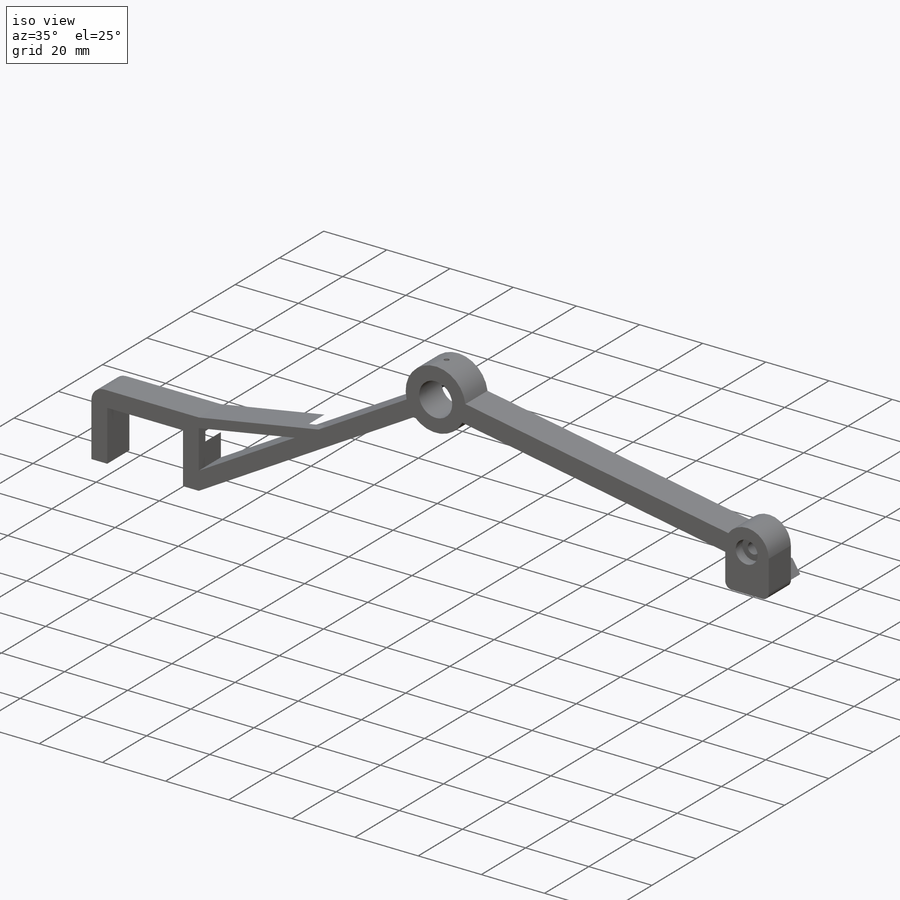
[diagram: iso view]
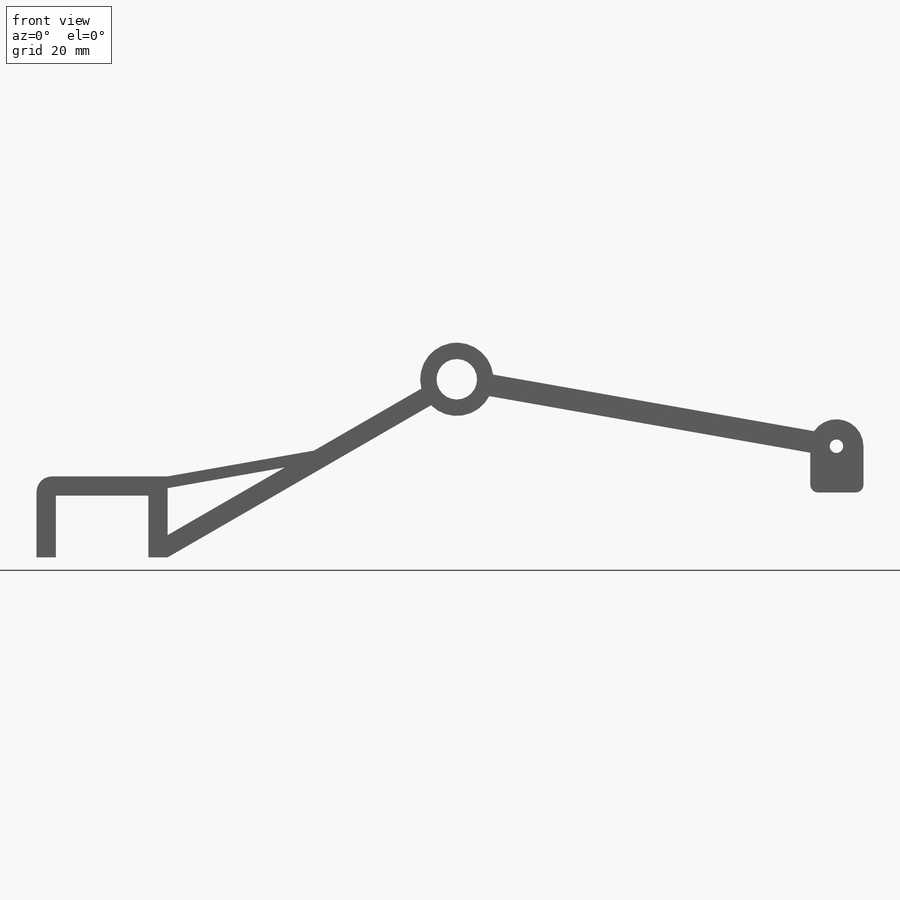
[diagram: front view]
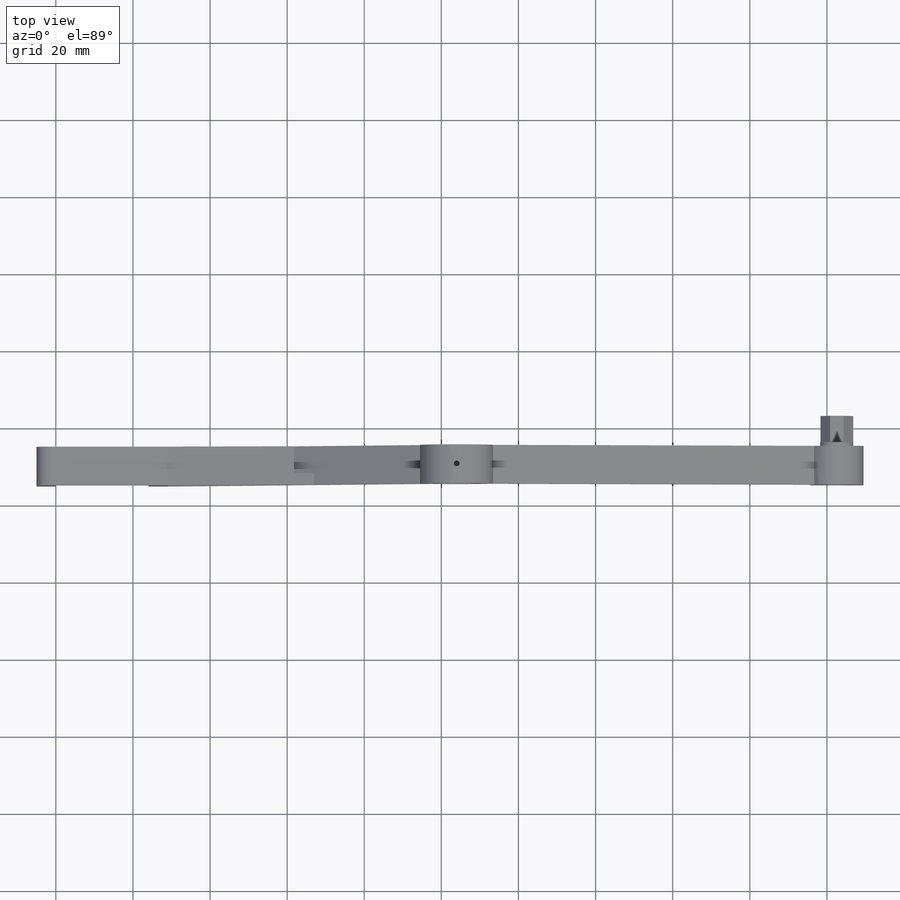
[diagram: top view]
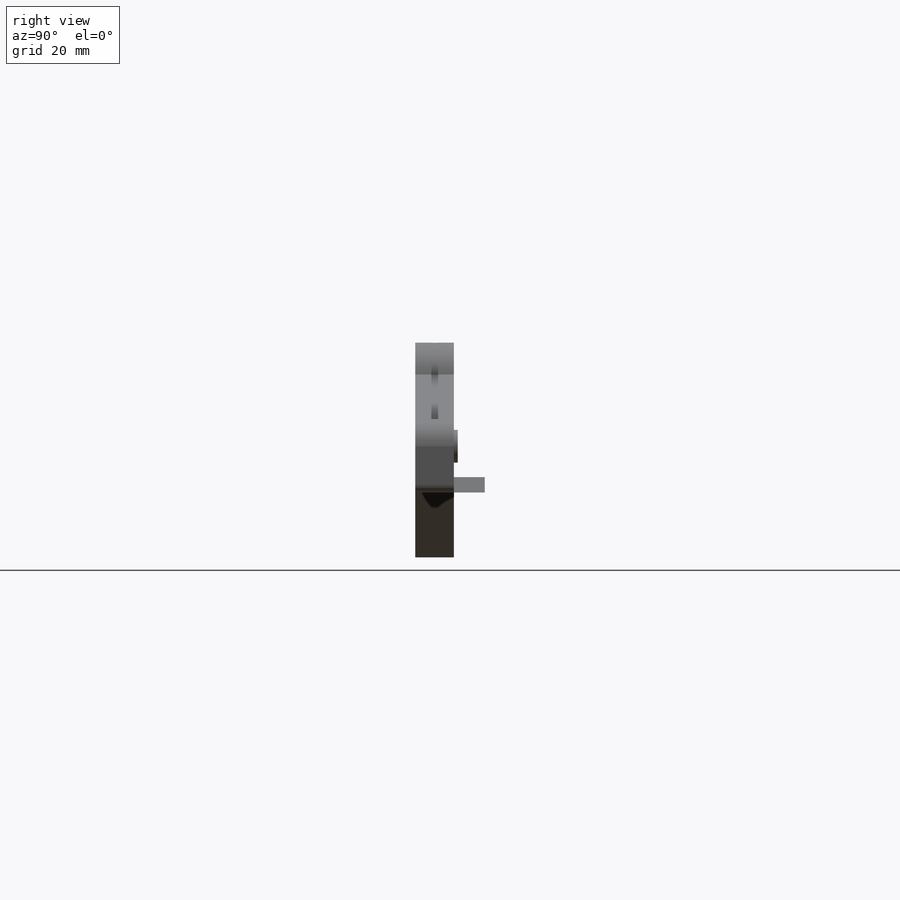
[diagram: right view]
SOLIDWORKS PART (.sldprt)
format: sldprt  version: not decoded by parser v0  size: 438,784 bytes
history: native  units: mm
features: sketch x11, cut_extrude x6, extrude x5, plane x3, fillet x2, material x1, mirror x1, delete_body x1 (+10 scaffold rows collapsed)
feature tree (40):
  scaffold x10  (default folders/planes/origin — collapsed)
  material  "ABS"
  plane  "Přední rovina"
  plane  "Horní rovina"
  plane  "Pravá rovina"
  sketch  "Skica1"  dims[c1.D11=19.0mm c1.D12=10.5mm c1.D14=7.0mm c1.D1=5.0mm c1.D2=5.0mm c1.D3=24.0mm c1.D4=16.0mm c1.D5=5.0mm c1.D6=5.0mm c1.D7=5.0mm c1.D8=80.0mm c1.D9=10.0mm c1.D10=~25.103637mm c2.D10=140.0deg c3.D10=~5.375908mm c4.D10=~68.44658deg c5.D10=~32.17291mm c6.D10=140.0deg c6.D9=~71.357504mm c7.D9=60.0deg c7.D13=100.0mm]
  extrude  "Přidat vysunutím1"  Depth=10mm
  fillet  "Zaoblit1"  Radius=4mm
  sketch  "Skica2"  dims[D1=3.5mm]
  sketch  "Skica4"  dims[c1.D1=3.0mm c1.D2=~15.226497mm c2.D2=80.0deg]
  extrude  "Přidat vysunutím3"  Depth=10mm
  sketch  "Skica5"  dims[c1.D1=5.5mm c1.D2=3.5mm c2.D1=2.5mm]
  extrude  "Přidat vysunutím4"  Depth=1mm
  sketch  "Skica8"  dims[D3=2.1mm D1=27.0mm D2=13.5mm]
  cut_extrude  "Odebrat vysunutím3"  Depth=6mm
  sketch  "Skica9"  dims[c1.D1=5.0mm c2.D1=45.0deg c2.D2=3.0mm]
  cut_extrude  "Odebrat vysunutím4"  Depth=7mm 7=7mm
  cut_extrude  "Odebrat vysunutím5"  Depth=10mm
  sketch  "Skica10"  dims[D1=7.0mm]
  cut_extrude  "Odebrat vysunutím6"  Depth=3mm
  mirror  "Zrcadlit1"
  delete_body  "Tělo-Odstranit1"
  sketch  "Skica11"  dims[D1=1.5mm]
  cut_extrude  "Odebrat vysunutím7"  Depth=10mm
  sketch  "Skica12"  dims[D1=12.0mm]
  extrude  "Přidat vysunutím5"  [1 undecoded]
  sketch  "Skica13"  dims[D1=4.0mm D2=8.5mm D3=3.5mm]
  extrude  "Přidat vysunutím6"  Depth=8mm
  fillet  "Zaoblit2"  Radius=2mm
  sketch  "Skica14"  dims[c1.D1=~4.385707mm c2.D1=~176.844501deg c3.D1=1.8mm]
  cut_extrude  "Odebrat vysunutím8"  [1 undecoded]
decode coverage: 22 of 26 modeling features carry decoded parameters
note: ~ marks probable driven/reference dimensions
note: 2 parameter values undecoded
note: suppression state not decoded; provenance and decode notes live in map.json
